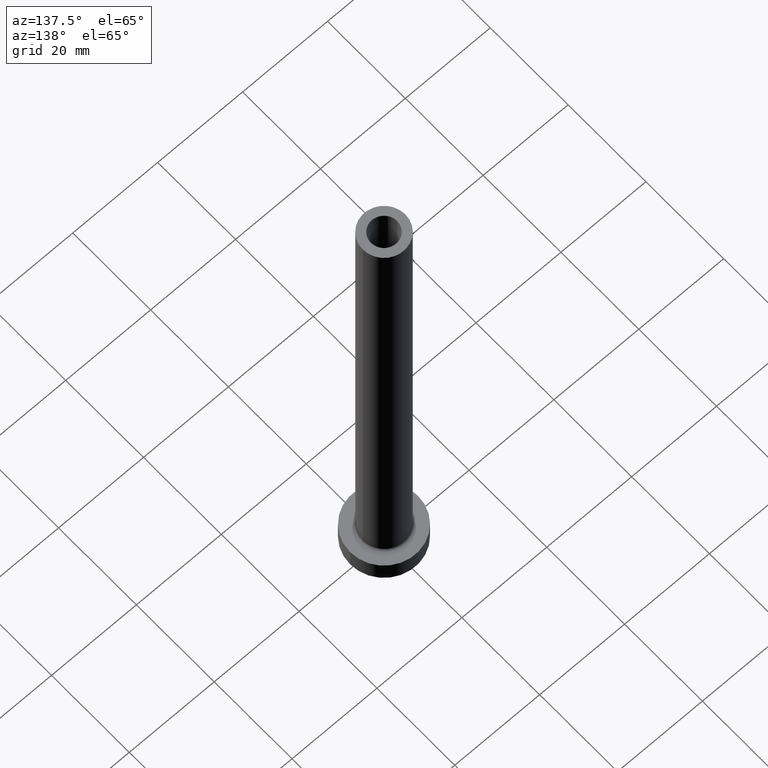
[diagram: clean part render]
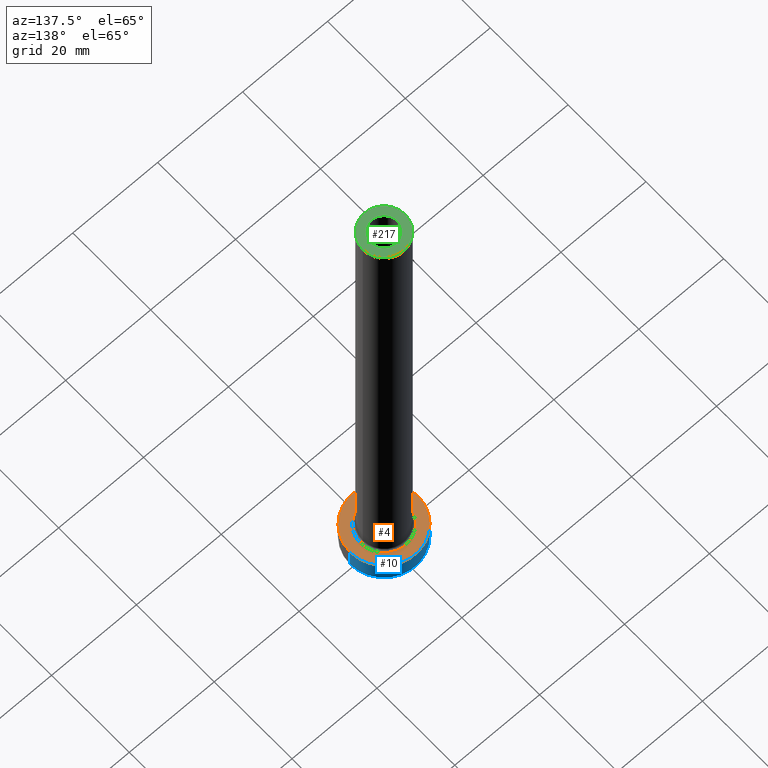
[diagram: same view with three faces highlighted in distinct colors, each labeled with its STEP entity id]
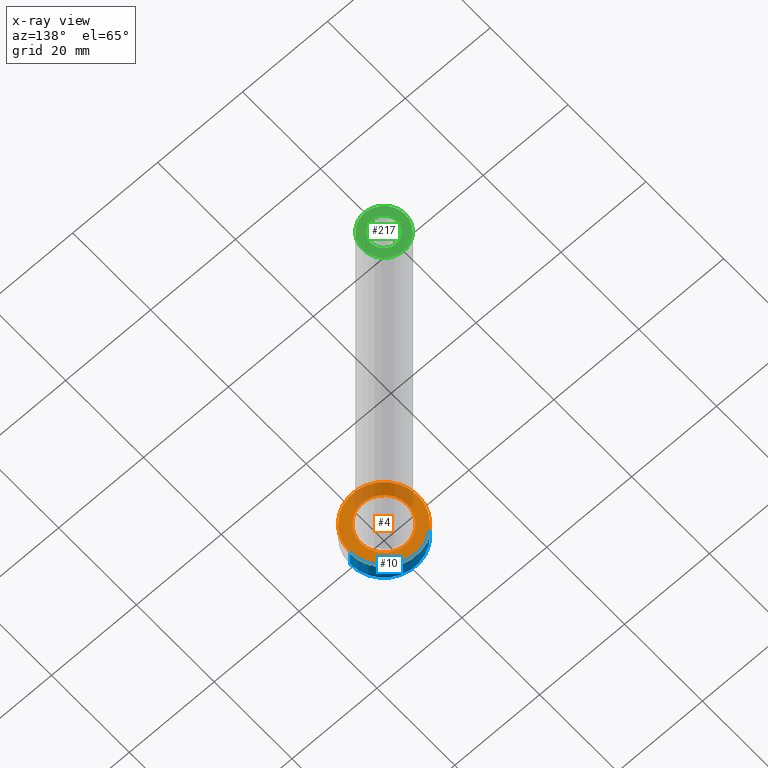
[diagram: x-ray of the same camera — body ghosted, the three highlighted faces saturated]
A machine part, auxiliary view with three faces highlighted in distinct colors.
The next image is the same camera in x-ray (body ghosted, the three faces saturated) — at least one of them is partly hidden behind the body in this view.
Their STEP definitions:

[orange] entity #4 — the highlighted planar face has unit normal (0, 0, 1).
#2 = VERTEX_POINT ( 'NONE', #134 ) ;
#4 = ADVANCED_FACE ( 'NONE', ( #203, #34 ), #162, .T. ) ;
#12 = AXIS2_PLACEMENT_3D ( 'NONE', #343, #372, #338 ) ;
#34 = FACE_OUTER_BOUND ( 'NONE', #405, .T. ) ;
#49 = CARTESIAN_POINT ( 'NONE',  ( 5.500000000000000000, 0.000000000000000000, 5.000000000000002665 ) ) ;
#67 = VERTEX_POINT ( 'NONE', #49 ) ;
#85 = DIRECTION ( 'NONE',  ( 1.000000000000000000, 0.000000000000000000, 0.000000000000000000 ) ) ;
#94 = CIRCLE ( 'NONE', #207, 8.000000000000000000 ) ;
#109 = AXIS2_PLACEMENT_3D ( 'NONE', #170, #269, #309 ) ;
#116 = CIRCLE ( 'NONE', #171, 8.000000000000000000 ) ;
#124 = AXIS2_PLACEMENT_3D ( 'NONE', #290, #404, #85 ) ;
#134 = CARTESIAN_POINT ( 'NONE',  ( -5.500000000000000000, 6.735557395310442023E-16, 5.000000000000002665 ) ) ;
#146 = CARTESIAN_POINT ( 'NONE',  ( 0.000000000000000000, 0.000000000000000000, 5.000000000000000000 ) ) ;
#161 = DIRECTION ( 'NONE',  ( 1.000000000000000000, 0.000000000000000000, 0.000000000000000000 ) ) ;
#162 = PLANE ( 'NONE',  #109 ) ;
#167 = EDGE_CURVE ( 'NONE', #429, #347, #116, .T. ) ;
#170 = CARTESIAN_POINT ( 'NONE',  ( 0.000000000000000000, 0.000000000000000000, 5.000000000000000000 ) ) ;
#171 = AXIS2_PLACEMENT_3D ( 'NONE', #146, #436, #286 ) ;
#186 = CIRCLE ( 'NONE', #12, 5.500000000000000000 ) ;
#194 = ORIENTED_EDGE ( 'NONE', *, *, #212, .T. ) ;
#201 = CIRCLE ( 'NONE', #124, 5.500000000000000000 ) ;
#203 = FACE_BOUND ( 'NONE', #228, .T. ) ;
#207 = AXIS2_PLACEMENT_3D ( 'NONE', #226, #262, #161 ) ;
#212 = EDGE_CURVE ( 'NONE', #67, #2, #201, .T. ) ;
#226 = CARTESIAN_POINT ( 'NONE',  ( 0.000000000000000000, 0.000000000000000000, 5.000000000000000000 ) ) ;
#228 = EDGE_LOOP ( 'NONE', ( #194, #260 ) ) ;
#260 = ORIENTED_EDGE ( 'NONE', *, *, #365, .T. ) ;
#262 = DIRECTION ( 'NONE',  ( 0.000000000000000000, 0.000000000000000000, 1.000000000000000000 ) ) ;
#269 = DIRECTION ( 'NONE',  ( 0.000000000000000000, 0.000000000000000000, 1.000000000000000000 ) ) ;
#286 = DIRECTION ( 'NONE',  ( 1.000000000000000000, 0.000000000000000000, 0.000000000000000000 ) ) ;
#290 = CARTESIAN_POINT ( 'NONE',  ( 0.000000000000000000, 0.000000000000000000, 5.000000000000000000 ) ) ;
#309 = DIRECTION ( 'NONE',  ( 1.000000000000000000, 0.000000000000000000, -0.000000000000000000 ) ) ;
#310 = EDGE_CURVE ( 'NONE', #347, #429, #94, .T. ) ;
#311 = CARTESIAN_POINT ( 'NONE',  ( -8.000000000000000000, 0.000000000000000000, 5.000000000000000000 ) ) ;
#338 = DIRECTION ( 'NONE',  ( 1.000000000000000000, 0.000000000000000000, 0.000000000000000000 ) ) ;
#343 = CARTESIAN_POINT ( 'NONE',  ( 0.000000000000000000, 0.000000000000000000, 5.000000000000000000 ) ) ;
#347 = VERTEX_POINT ( 'NONE', #367 ) ;
#365 = EDGE_CURVE ( 'NONE', #2, #67, #186, .T. ) ;
#367 = CARTESIAN_POINT ( 'NONE',  ( 8.000000000000000000, 9.797174393178825657E-16, 5.000000000000000000 ) ) ;
#372 = DIRECTION ( 'NONE',  ( -0.000000000000000000, -0.000000000000000000, -1.000000000000000000 ) ) ;
#401 = ORIENTED_EDGE ( 'NONE', *, *, #310, .T. ) ;
#404 = DIRECTION ( 'NONE',  ( -0.000000000000000000, -0.000000000000000000, -1.000000000000000000 ) ) ;
#405 = EDGE_LOOP ( 'NONE', ( #454, #401 ) ) ;
#429 = VERTEX_POINT ( 'NONE', #311 ) ;
#436 = DIRECTION ( 'NONE',  ( 0.000000000000000000, 0.000000000000000000, 1.000000000000000000 ) ) ;
#454 = ORIENTED_EDGE ( 'NONE', *, *, #167, .T. ) ;

[blue] entity #10 — the highlighted cylindrical surface (partial cylindrical patch) has radius 8 mm, axis along (-0, -0, -1).
#1 = CARTESIAN_POINT ( 'NONE',  ( -8.000000000000000000, 0.000000000000000000, 0.000000000000000000 ) ) ;
#10 = ADVANCED_FACE ( 'NONE', ( #391 ), #78, .T. ) ;
#23 = CARTESIAN_POINT ( 'NONE',  ( 0.000000000000000000, 0.000000000000000000, 0.000000000000000000 ) ) ;
#29 = EDGE_LOOP ( 'NONE', ( #368, #328, #224, #145 ) ) ;
#68 = VECTOR ( 'NONE', #197, 1000.000000000000000 ) ;
#78 = CYLINDRICAL_SURFACE ( 'NONE', #325, 8.000000000000000000 ) ;
#94 = CIRCLE ( 'NONE', #207, 8.000000000000000000 ) ;
#118 = CIRCLE ( 'NONE', #250, 8.000000000000000000 ) ;
#126 = CARTESIAN_POINT ( 'NONE',  ( -8.000000000000000000, 0.000000000000000000, 5.000000000000000000 ) ) ;
#132 = DIRECTION ( 'NONE',  ( -1.000000000000000000, 0.000000000000000000, 0.000000000000000000 ) ) ;
#145 = ORIENTED_EDGE ( 'NONE', *, *, #234, .F. ) ;
#156 = CARTESIAN_POINT ( 'NONE',  ( 8.000000000000000000, 9.797174393178825657E-16, 0.000000000000000000 ) ) ;
#161 = DIRECTION ( 'NONE',  ( 1.000000000000000000, 0.000000000000000000, 0.000000000000000000 ) ) ;
#185 = EDGE_CURVE ( 'NONE', #347, #275, #254, .T. ) ;
#197 = DIRECTION ( 'NONE',  ( -0.000000000000000000, -0.000000000000000000, -1.000000000000000000 ) ) ;
#207 = AXIS2_PLACEMENT_3D ( 'NONE', #226, #262, #161 ) ;
#219 = DIRECTION ( 'NONE',  ( -0.000000000000000000, -0.000000000000000000, -1.000000000000000000 ) ) ;
#224 = ORIENTED_EDGE ( 'NONE', *, *, #337, .T. ) ;
#226 = CARTESIAN_POINT ( 'NONE',  ( 0.000000000000000000, 0.000000000000000000, 5.000000000000000000 ) ) ;
#234 = EDGE_CURVE ( 'NONE', #429, #411, #415, .T. ) ;
#250 = AXIS2_PLACEMENT_3D ( 'NONE', #23, #304, #263 ) ;
#254 = LINE ( 'NONE', #400, #334 ) ;
#262 = DIRECTION ( 'NONE',  ( 0.000000000000000000, 0.000000000000000000, 1.000000000000000000 ) ) ;
#263 = DIRECTION ( 'NONE',  ( 1.000000000000000000, 0.000000000000000000, 0.000000000000000000 ) ) ;
#275 = VERTEX_POINT ( 'NONE', #156 ) ;
#303 = CARTESIAN_POINT ( 'NONE',  ( 0.000000000000000000, 0.000000000000000000, 5.000000000000000000 ) ) ;
#304 = DIRECTION ( 'NONE',  ( 0.000000000000000000, 0.000000000000000000, 1.000000000000000000 ) ) ;
#310 = EDGE_CURVE ( 'NONE', #347, #429, #94, .T. ) ;
#311 = CARTESIAN_POINT ( 'NONE',  ( -8.000000000000000000, 0.000000000000000000, 5.000000000000000000 ) ) ;
#325 = AXIS2_PLACEMENT_3D ( 'NONE', #303, #448, #132 ) ;
#328 = ORIENTED_EDGE ( 'NONE', *, *, #185, .T. ) ;
#334 = VECTOR ( 'NONE', #219, 1000.000000000000000 ) ;
#337 = EDGE_CURVE ( 'NONE', #275, #411, #118, .T. ) ;
#347 = VERTEX_POINT ( 'NONE', #367 ) ;
#367 = CARTESIAN_POINT ( 'NONE',  ( 8.000000000000000000, 9.797174393178825657E-16, 5.000000000000000000 ) ) ;
#368 = ORIENTED_EDGE ( 'NONE', *, *, #310, .F. ) ;
#391 = FACE_OUTER_BOUND ( 'NONE', #29, .T. ) ;
#400 = CARTESIAN_POINT ( 'NONE',  ( 8.000000000000000000, 9.797174393178825657E-16, 5.000000000000000000 ) ) ;
#411 = VERTEX_POINT ( 'NONE', #1 ) ;
#415 = LINE ( 'NONE', #126, #68 ) ;
#429 = VERTEX_POINT ( 'NONE', #311 ) ;
#448 = DIRECTION ( 'NONE',  ( -0.000000000000000000, -0.000000000000000000, -1.000000000000000000 ) ) ;

[green] entity #217 — the highlighted planar face has unit normal (0, 0, 1).
#3 = AXIS2_PLACEMENT_3D ( 'NONE', #340, #66, #133 ) ;
#7 = CARTESIAN_POINT ( 'NONE',  ( -5.000000000000000000, 0.000000000000000000, 125.0000000000000000 ) ) ;
#15 = FACE_BOUND ( 'NONE', #331, .T. ) ;
#26 = VERTEX_POINT ( 'NONE', #98 ) ;
#37 = AXIS2_PLACEMENT_3D ( 'NONE', #409, #128, #58 ) ;
#56 = ORIENTED_EDGE ( 'NONE', *, *, #277, .F. ) ;
#58 = DIRECTION ( 'NONE',  ( 1.000000000000000000, 0.000000000000000000, 0.000000000000000000 ) ) ;
#64 = FACE_OUTER_BOUND ( 'NONE', #356, .T. ) ;
#66 = DIRECTION ( 'NONE',  ( 0.000000000000000000, 0.000000000000000000, 1.000000000000000000 ) ) ;
#74 = CIRCLE ( 'NONE', #352, 3.100000000000000089 ) ;
#97 = DIRECTION ( 'NONE',  ( 1.000000000000000000, 0.000000000000000000, 0.000000000000000000 ) ) ;
#98 = CARTESIAN_POINT ( 'NONE',  ( 3.100000000000000089, 3.796405077356793932E-16, 125.0000000000000000 ) ) ;
#113 = CARTESIAN_POINT ( 'NONE',  ( 5.000000000000000000, 6.123233995736766282E-16, 125.0000000000000000 ) ) ;
#128 = DIRECTION ( 'NONE',  ( 0.000000000000000000, 0.000000000000000000, 1.000000000000000000 ) ) ;
#129 = VERTEX_POINT ( 'NONE', #113 ) ;
#133 = DIRECTION ( 'NONE',  ( 1.000000000000000000, 0.000000000000000000, -0.000000000000000000 ) ) ;
#139 = VERTEX_POINT ( 'NONE', #7 ) ;
#140 = DIRECTION ( 'NONE',  ( 0.000000000000000000, 0.000000000000000000, 1.000000000000000000 ) ) ;
#160 = VERTEX_POINT ( 'NONE', #407 ) ;
#172 = AXIS2_PLACEMENT_3D ( 'NONE', #413, #419, #97 ) ;
#198 = ORIENTED_EDGE ( 'NONE', *, *, #246, .T. ) ;
#217 = ADVANCED_FACE ( 'NONE', ( #15, #64 ), #265, .T. ) ;
#235 = DIRECTION ( 'NONE',  ( 0.000000000000000000, 0.000000000000000000, 1.000000000000000000 ) ) ;
#244 = CIRCLE ( 'NONE', #318, 3.100000000000000089 ) ;
#246 = EDGE_CURVE ( 'NONE', #139, #129, #412, .T. ) ;
#265 = PLANE ( 'NONE',  #3 ) ;
#271 = ORIENTED_EDGE ( 'NONE', *, *, #315, .T. ) ;
#277 = EDGE_CURVE ( 'NONE', #26, #160, #244, .T. ) ;
#300 = CARTESIAN_POINT ( 'NONE',  ( 0.000000000000000000, 0.000000000000000000, 125.0000000000000000 ) ) ;
#315 = EDGE_CURVE ( 'NONE', #129, #139, #449, .T. ) ;
#318 = AXIS2_PLACEMENT_3D ( 'NONE', #300, #235, #447 ) ;
#331 = EDGE_LOOP ( 'NONE', ( #456, #56 ) ) ;
#340 = CARTESIAN_POINT ( 'NONE',  ( 0.000000000000000000, 0.000000000000000000, 125.0000000000000000 ) ) ;
#352 = AXIS2_PLACEMENT_3D ( 'NONE', #424, #140, #383 ) ;
#356 = EDGE_LOOP ( 'NONE', ( #198, #271 ) ) ;
#383 = DIRECTION ( 'NONE',  ( 1.000000000000000000, 0.000000000000000000, 0.000000000000000000 ) ) ;
#407 = CARTESIAN_POINT ( 'NONE',  ( -3.100000000000000089, 0.000000000000000000, 125.0000000000000000 ) ) ;
#409 = CARTESIAN_POINT ( 'NONE',  ( 0.000000000000000000, 0.000000000000000000, 125.0000000000000000 ) ) ;
#412 = CIRCLE ( 'NONE', #37, 5.000000000000000000 ) ;
#413 = CARTESIAN_POINT ( 'NONE',  ( 0.000000000000000000, 0.000000000000000000, 125.0000000000000000 ) ) ;
#419 = DIRECTION ( 'NONE',  ( 0.000000000000000000, 0.000000000000000000, 1.000000000000000000 ) ) ;
#424 = CARTESIAN_POINT ( 'NONE',  ( 0.000000000000000000, 0.000000000000000000, 125.0000000000000000 ) ) ;
#430 = EDGE_CURVE ( 'NONE', #160, #26, #74, .T. ) ;
#447 = DIRECTION ( 'NONE',  ( 1.000000000000000000, 0.000000000000000000, 0.000000000000000000 ) ) ;
#449 = CIRCLE ( 'NONE', #172, 5.000000000000000000 ) ;
#456 = ORIENTED_EDGE ( 'NONE', *, *, #430, .F. ) ;